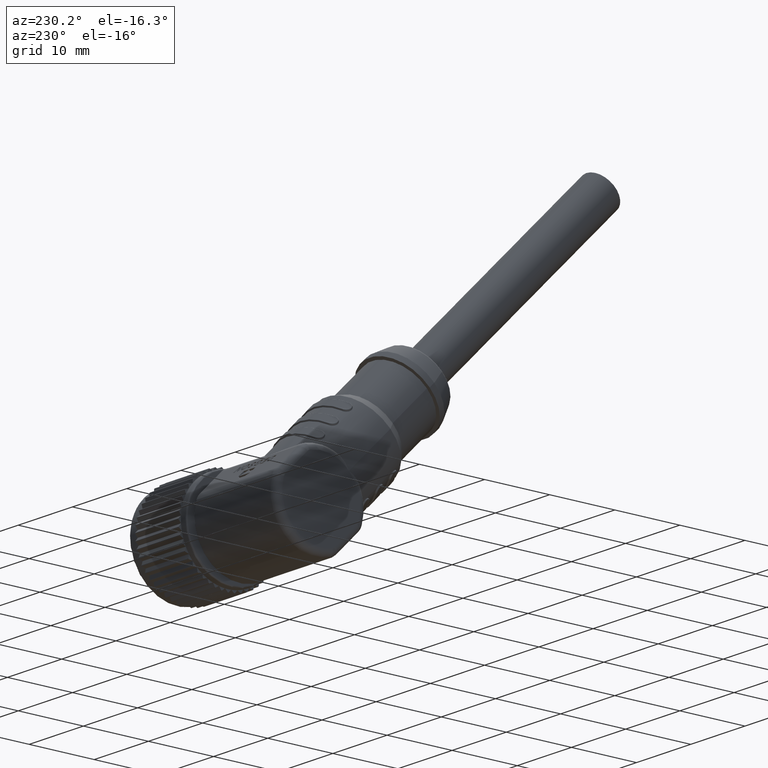
[diagram: clean part render]
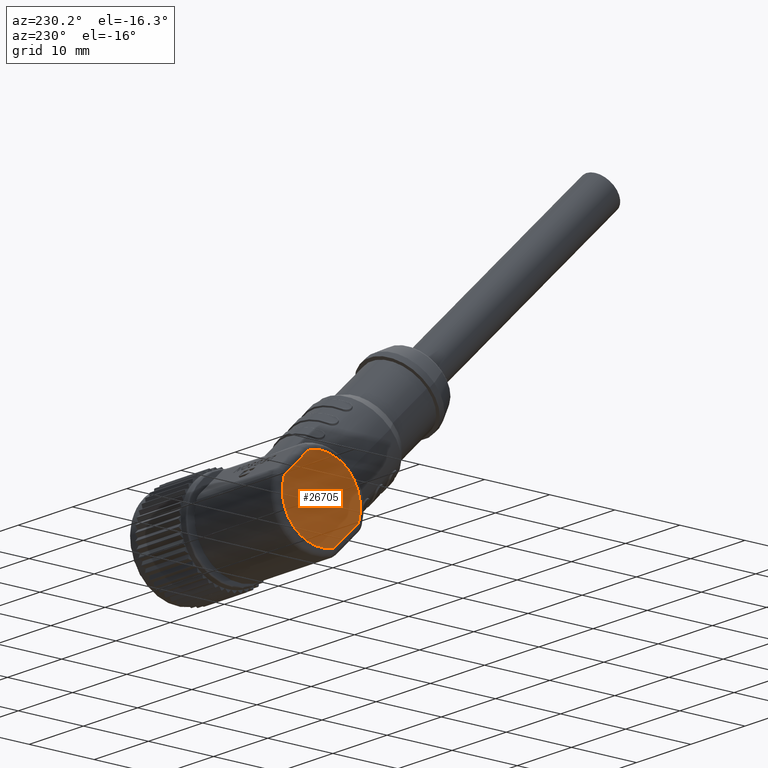
[diagram: same view with one face highlighted and labeled with its STEP entity id]
A machine part, auxiliary view. The second image highlights one B-rep face of the part: STEP entity #26705.
In plain terms, the highlighted planar face has unit normal (1, 0, 0).
Its self-contained STEP definition (entity closure, byte-faithful):
#5402=DIRECTION('',(0.E0,-7.071067811866E-1,7.071067811865E-1));
#5403=VECTOR('',#5402,4.749736834810E0);
#5404=CARTESIAN_POINT('',(-2.79E1,-2.139091056036E0,-5.497662180781E0));
#5405=LINE('',#5404,#5403);
#6088=CARTESIAN_POINT('',(-2.79E1,-4.242637687795E0,4.242644279817E0));
#6181=CARTESIAN_POINT('',(-2.789999999997E1,-1.431984274849E0,
-4.790555399599E0));
#6182=DIRECTION('',(1.E0,-6.636456908689E-12,-1.148866063577E-11));
#6183=DIRECTION('',(-1.281463823949E-11,-7.071067811925E-1,-7.071067811806E-1));
#6184=AXIS2_PLACEMENT_3D('',#6181,#6182,#6183);
#6186=CARTESIAN_POINT('',(-2.79E1,0.E0,0.E0));
#6187=DIRECTION('',(1.E0,0.E0,0.E0));
#6188=DIRECTION('',(0.E0,-2.863968549687E-1,-9.581110799192E-1));
#6189=AXIS2_PLACEMENT_3D('',#6186,#6187,#6188);
#6191=CARTESIAN_POINT('',(-2.79E1,0.E0,0.E0));
#6192=DIRECTION('',(1.E0,0.E0,0.E0));
#6193=DIRECTION('',(0.E0,7.052737104962E-1,-7.089351121809E-1));
#6194=AXIS2_PLACEMENT_3D('',#6191,#6192,#6193);
#6196=CARTESIAN_POINT('',(-2.79E1,4.790555399595E0,1.431984274846E0));
#6197=DIRECTION('',(1.E0,0.E0,0.E0));
#6198=DIRECTION('',(0.E0,9.581110799200E-1,2.863968549662E-1));
#6199=AXIS2_PLACEMENT_3D('',#6196,#6197,#6198);
#6201=CARTESIAN_POINT('',(-2.789999999997E1,1.431984274849E0,4.790555399599E0));
#6202=DIRECTION('',(1.E0,6.636456908689E-12,1.148866063577E-11));
#6203=DIRECTION('',(-1.281463823949E-11,7.071067811925E-1,7.071067811806E-1));
#6204=AXIS2_PLACEMENT_3D('',#6201,#6202,#6203);
#6206=CARTESIAN_POINT('',(-2.79E1,1.718381129814E0,5.748666479515E0));
#6207=CARTESIAN_POINT('',(-2.79E1,1.371298488337E0,5.852415803593E0));
#6208=CARTESIAN_POINT('',(-2.790000001701E1,6.716990387200E-1,
5.994271419178E0));
#6209=CARTESIAN_POINT('',(-2.789999994048E1,-4.073248339895E-1,
6.018437786976E0));
#6210=CARTESIAN_POINT('',(-2.790000022107E1,-1.469758339744E0,
5.850018666237E0));
#6211=CARTESIAN_POINT('',(-2.789999917525E1,-2.486404269151E0,
5.496180988192E0));
#6212=CARTESIAN_POINT('',(-2.790000307792E1,-3.423469408263E0,
4.964745783124E0));
#6213=CARTESIAN_POINT('',(-2.789999336801E1,-3.978828285018E0,
4.509303419568E0));
#6214=CARTESIAN_POINT('',(-2.789999336801E1,-4.235292383774E0,
4.253471069964E0));
#6216=CARTESIAN_POINT('',(-2.79E1,0.E0,0.E0));
#6217=DIRECTION('',(1.E0,0.E0,0.E0));
#6218=DIRECTION('',(0.E0,-7.071045838430E-1,7.071089785233E-1));
#6219=AXIS2_PLACEMENT_3D('',#6216,#6217,#6218);
#6221=CARTESIAN_POINT('',(-2.789999999997E1,-4.790555399599E0,
-1.431984274849E0));
#6222=DIRECTION('',(1.E0,-1.148866063577E-11,-6.636456908689E-12));
#6223=DIRECTION('',(-1.290700879514E-11,-9.581110799205E-1,-2.863968549647E-1));
#6224=AXIS2_PLACEMENT_3D('',#6221,#6222,#6223);
#6245=DIRECTION('',(-8.893496020950E-13,7.071067811865E-1,-7.071067811865E-1));
#6246=VECTOR('',#6245,4.749736834810E0);
#6247=CARTESIAN_POINT('',(-2.79E1,2.139091056036E0,5.497662180781E0));
#6248=LINE('',#6247,#6246);
#6284=CARTESIAN_POINT('',(-2.79E1,-4.242637687795E0,4.242644279817E0));
#6285=CARTESIAN_POINT('',(-2.79E1,-4.242238171140E0,4.245905377865E0));
#6286=CARTESIAN_POINT('',(-2.790000331599E1,-4.238144074150E0,
4.251099110851E0));
#6287=CARTESIAN_POINT('',(-2.789999336801E1,-4.238567485320E0,
4.253069931100E0));
#6288=CARTESIAN_POINT('',(-2.789999336801E1,-4.235292383774E0,
4.253471069964E0));
#13573=CARTESIAN_POINT('',(-2.789999999999E1,-2.139091056036E0,
-5.497662180784E0));
#13574=VERTEX_POINT('',#13573);
#13575=CARTESIAN_POINT('',(-2.79E1,-5.497662180781E0,-2.139091056036E0));
#13576=VERTEX_POINT('',#13575);
#13577=CARTESIAN_POINT('',(-2.789999999999E1,-1.718381129815E0,
-5.748666479515E0));
#13578=VERTEX_POINT('',#13577);
#13583=CARTESIAN_POINT('',(-2.79E1,5.748666479514E0,1.718381129815E0));
#13584=VERTEX_POINT('',#13583);
#13585=CARTESIAN_POINT('',(-2.79E1,4.231642262977E0,-4.253610673085E0));
#13586=VERTEX_POINT('',#13585);
#14068=VERTEX_POINT('',#6088);
#14092=CARTESIAN_POINT('',(-2.789999999999E1,-5.748666479514E0,
-1.718381129815E0));
#14093=VERTEX_POINT('',#14092);
#14094=CARTESIAN_POINT('',(-2.79E1,5.497662180776E0,2.139091056038E0));
#14095=VERTEX_POINT('',#14094);
#14096=CARTESIAN_POINT('',(-2.79E1,2.139091056036E0,5.497662180781E0));
#14097=VERTEX_POINT('',#14096);
#14098=CARTESIAN_POINT('',(-2.789999999999E1,1.718381129812E0,
5.748666479515E0));
#14099=VERTEX_POINT('',#14098);
#14100=VERTEX_POINT('',#6214);
#26682=CARTESIAN_POINT('',(-2.79E1,0.E0,0.E0));
#26683=DIRECTION('',(1.E0,0.E0,0.E0));
#26684=DIRECTION('',(0.E0,7.071067811865E-1,7.071067811865E-1));
#26685=AXIS2_PLACEMENT_3D('',#26682,#26683,#26684);
#26686=PLANE('',#26685);
#26687=ORIENTED_EDGE('',*,*,#25970,.T.);
#26688=ORIENTED_EDGE('',*,*,#25991,.T.);
#26689=ORIENTED_EDGE('',*,*,#25989,.T.);
#26691=ORIENTED_EDGE('',*,*,#26690,.T.);
#26693=ORIENTED_EDGE('',*,*,#26692,.F.);
#26695=ORIENTED_EDGE('',*,*,#26694,.T.);
#26697=ORIENTED_EDGE('',*,*,#26696,.T.);
#26699=ORIENTED_EDGE('',*,*,#26698,.F.);
#26700=ORIENTED_EDGE('',*,*,#26650,.T.);
#26701=ORIENTED_EDGE('',*,*,#26675,.T.);
#26702=ORIENTED_EDGE('',*,*,#25943,.F.);
#26703=EDGE_LOOP('',(#26687,#26688,#26689,#26691,#26693,#26695,#26697,#26699,
#26700,#26701,#26702));
#26704=FACE_OUTER_BOUND('',#26703,.F.);
#26705=ADVANCED_FACE('',(#26704),#26686,.F.);
#6185=CIRCLE('',#6184,9.999999999955E-1);
#6190=CIRCLE('',#6189,6.E0);
#6195=CIRCLE('',#6194,6.E0);
#6200=CIRCLE('',#6199,1.E0);
#6205=CIRCLE('',#6204,9.999999999955E-1);
#6215=B_SPLINE_CURVE_WITH_KNOTS('',3,(#6206,#6207,#6208,#6209,#6210,#6211,#6212,
#6213,#6214),.UNSPECIFIED.,.F.,.F.,(4,1,1,1,1,1,4),(0.E0,1.666666666667E-1,
3.333333333333E-1,5.E-1,6.666666666667E-1,8.333333333333E-1,1.E0),
.UNSPECIFIED.);
#6220=CIRCLE('',#6219,6.E0);
#6225=CIRCLE('',#6224,9.999999999955E-1);
#6289=B_SPLINE_CURVE_WITH_KNOTS('',3,(#6284,#6285,#6286,#6287,#6288),
.UNSPECIFIED.,.F.,.F.,(4,1,4),(0.E0,5.E-1,1.E0),.UNSPECIFIED.);
#25943=EDGE_CURVE('',#13574,#13576,#5405,.T.);
#25970=EDGE_CURVE('',#13574,#13578,#6185,.T.);
#25989=EDGE_CURVE('',#13586,#13584,#6195,.T.);
#25991=EDGE_CURVE('',#13578,#13586,#6190,.T.);
#26650=EDGE_CURVE('',#14068,#14093,#6220,.T.);
#26675=EDGE_CURVE('',#14093,#13576,#6225,.T.);
#26690=EDGE_CURVE('',#13584,#14095,#6200,.T.);
#26692=EDGE_CURVE('',#14097,#14095,#6248,.T.);
#26694=EDGE_CURVE('',#14097,#14099,#6205,.T.);
#26696=EDGE_CURVE('',#14099,#14100,#6215,.T.);
#26698=EDGE_CURVE('',#14068,#14100,#6289,.T.);